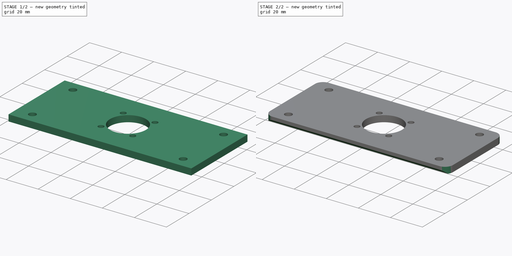
[diagram: build sequence overview — one tinted view per stage of 2, left to right]
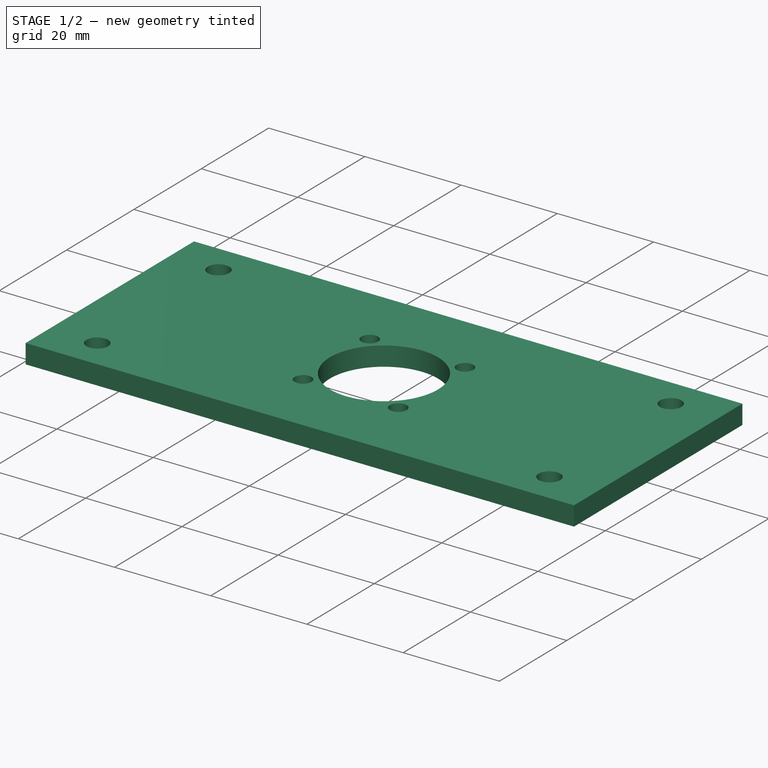
[diagram: stage 1 of 2 — iso view after this stage's code; geometry added in this stage tinted green]
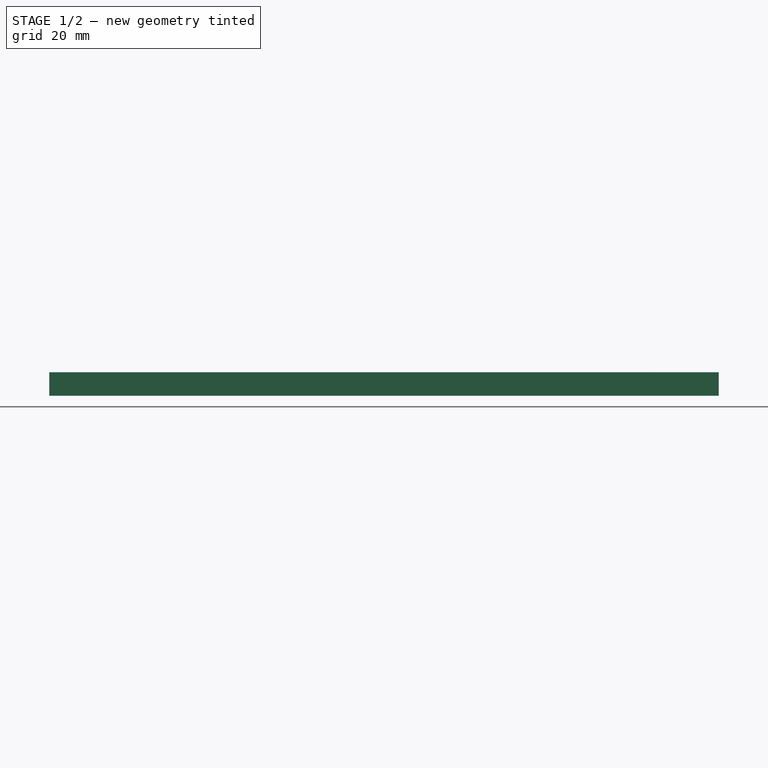
[diagram: stage 1 of 2 — front view after this stage's code; geometry added in this stage tinted green]
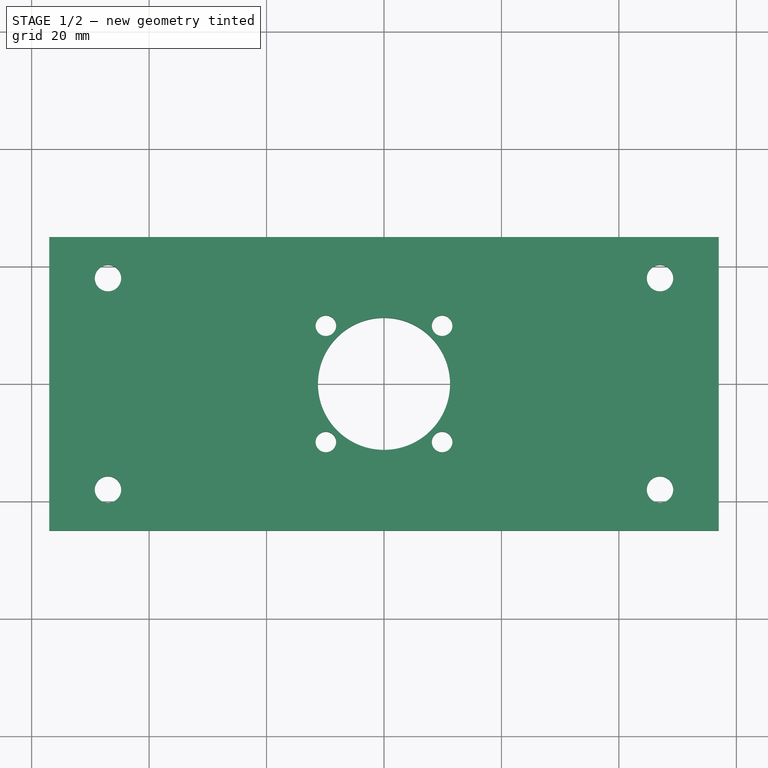
[diagram: stage 1 of 2 — top view after this stage's code; geometry added in this stage tinted green]
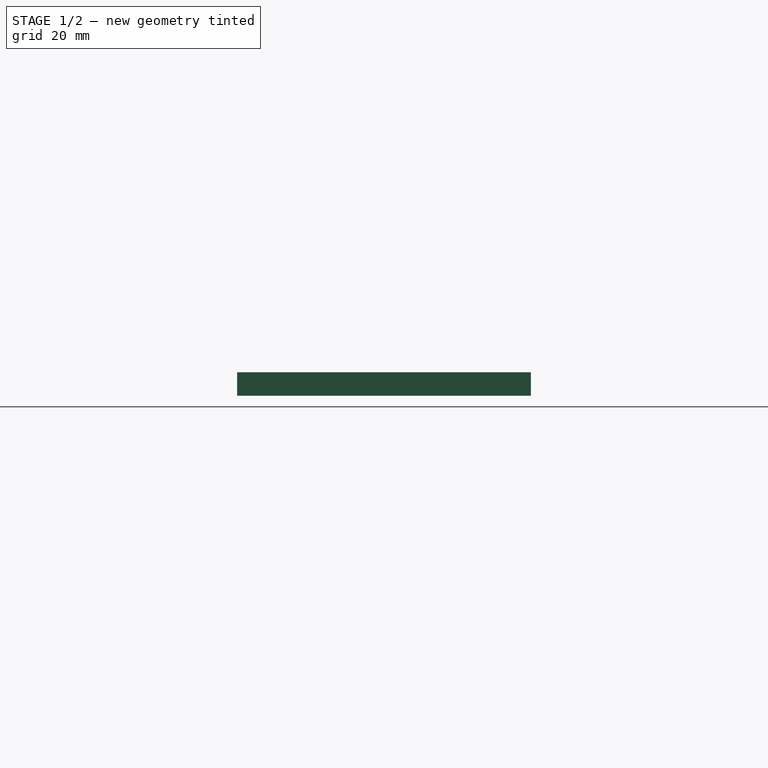
[diagram: stage 1 of 2 — right view after this stage's code; geometry added in this stage tinted green]
FCSTD DOCUMENT  (FreeCAD 0.16R6707 (Git))
Label: spindle motor mount 2
License: All rights reserved
LicenseURL: http://en.wikipedia.org/wiki/All_rights_reserved
objects: Sketcher::SketchObject×2, PartDesign::Pad×1, PartDesign::Pocket×1, PartDesign::Chamfer×1, PartDesign::Fillet×1
note: 8 computed .brp shape members not serialized (recipe doc carries the construction recipe); baked Part::Feature solids carry a one-line shape summary decoded from their .brp

FEATURE [Sketcher::SketchObject] Sketch
  sketch-geometry (4):
    g0: LineSegment StartX=-57 StartY=25 StartZ=0 EndX=57 EndY=25 EndZ=0
    g1: LineSegment StartX=57 StartY=25 StartZ=0 EndX=57 EndY=-25 EndZ=0
    g2: LineSegment StartX=57 StartY=-25 StartZ=0 EndX=-57 EndY=-25 EndZ=0
    g3: LineSegment StartX=-57 StartY=-25 StartZ=0 EndX=-57 EndY=25 EndZ=0
  constraints (12):
    c: Coincident(g0,g1)
    c: Coincident(g1,g2)
    c: Coincident(g2,g3)
    c: Coincident(g3,g0)
    c: Horizontal(g0)
    c: Horizontal(g2)
    c: Vertical(g1)
    c: Vertical(g3)
    c: Symmetric(g0,g0,g-2)
    c: Symmetric(g0,g2,g-1)
    c: DistanceX(g0,g0) = 114
    c: DistanceY(g3,g3) = 50
FEATURE [PartDesign::Pad] Pad
  Length = 4
  Length2 = 100
  Sketch = -> Sketch
  Type = 0
FEATURE [Sketcher::SketchObject] Sketch001
  Placement = pos=(0,0,4) rot=(0,0,1;0rad)
  Support = -> Pad [Face6]
  sketch-geometry (17):
    g0: Circle CenterX=0 CenterY=0 CenterZ=0 NormalX=0 NormalY=0 NormalZ=1 Radius=11.25
    g1: LineSegment [constr] StartX=-47 StartY=18 StartZ=0 EndX=47 EndY=18 EndZ=0
    g2: LineSegment [constr] StartX=47 StartY=18 StartZ=0 EndX=47 EndY=-18 EndZ=0
    g3: LineSegment [constr] StartX=47 StartY=-18 StartZ=0 EndX=-47 EndY=-18 EndZ=0
    g4: LineSegment [constr] StartX=-47 StartY=-18 StartZ=0 EndX=-47 EndY=18 EndZ=0
    g5: Circle CenterX=-47 CenterY=18 CenterZ=0 NormalX=0 NormalY=0 NormalZ=1 Radius=2.25
    g6: Circle CenterX=-47 CenterY=-18 CenterZ=0 NormalX=0 NormalY=0 NormalZ=1 Radius=2.25
    g7: Circle CenterX=47 CenterY=18 CenterZ=0 NormalX=0 NormalY=0 NormalZ=1 Radius=2.25
    g8: Circle CenterX=47 CenterY=-18 CenterZ=0 NormalX=0 NormalY=0 NormalZ=1 Radius=2.25
    g9: LineSegment [constr] StartX=-9.89949 StartY=9.89949 StartZ=0 EndX=9.89949 EndY=9.89949 EndZ=0
    g10: LineSegment [constr] StartX=9.89949 StartY=9.89949 StartZ=0 EndX=9.89949 EndY=-9.89949 EndZ=0
    g11: LineSegment [constr] StartX=9.89949 StartY=-9.89949 StartZ=0 EndX=-9.89949 EndY=-9.89949 EndZ=0
    g12: LineSegment [constr] StartX=-9.89949 StartY=-9.89949 StartZ=0 EndX=-9.89949 EndY=9.89949 EndZ=0
    g13: Circle CenterX=-9.89949 CenterY=9.89949 CenterZ=0 NormalX=0 NormalY=0 NormalZ=1 Radius=1.75
    g14: Circle CenterX=9.89949 CenterY=9.89949 CenterZ=0 NormalX=0 NormalY=0 NormalZ=1 Radius=1.75
    g15: Circle CenterX=9.89949 CenterY=-9.89949 CenterZ=0 NormalX=0 NormalY=0 NormalZ=1 Radius=1.75
    g16: Circle CenterX=-9.89949 CenterY=-9.89949 CenterZ=0 NormalX=0 NormalY=0 NormalZ=1 Radius=1.75
  constraints (42):
    c: Coincident(g0,g-1)
    c: Radius(g0) = 11.25
    c: Coincident(g1,g2)
    c: Coincident(g2,g3)
    c: Coincident(g3,g4)
    c: Coincident(g4,g1)
    c: Horizontal(g1)
    c: Horizontal(g3)
    c: Vertical(g2)
    c: Vertical(g4)
    c: Symmetric(g1,g3,g-1)
    c: Symmetric(g1,g1,g-2)
    c: DistanceX(g1,g1) = 94
    c: DistanceY(g4,g4) = 36
    c: Coincident(g5,g1)
    c: Coincident(g6,g3)
    c: Coincident(g7,g1)
    c: Coincident(g8,g2)
    c: Equal(g5,g6)
    c: Equal(g6,g7)
    c: Equal(g7,g8)
    c: Radius(g5) = 2.25
    c: Coincident(g9,g10)
    c: Coincident(g10,g11)
    c: Coincident(g11,g12)
    c: Coincident(g12,g9)
    c: Horizontal(g9)
    c: Horizontal(g11)
    c: Vertical(g10)
    c: Vertical(g12)
    c: Symmetric(g9,g11,g-1)
    c: Symmetric(g9,g9,g-2)
    c: Equal(g9,g12)
    c: Distance(g11,g9) = 28
    c: Coincident(g13,g9)
    c: Coincident(g14,g9)
    c: Coincident(g15,g10)
    c: Coincident(g11,g16)
    c: Radius(g13) = 1.75
    c: Equal(g13,g16)
    c: Equal(g13,g15)
    c: Equal(g13,g14)
FEATURE [PartDesign::Pocket] Pocket
  Length = 5
  Sketch = -> Sketch001
  Type = 1
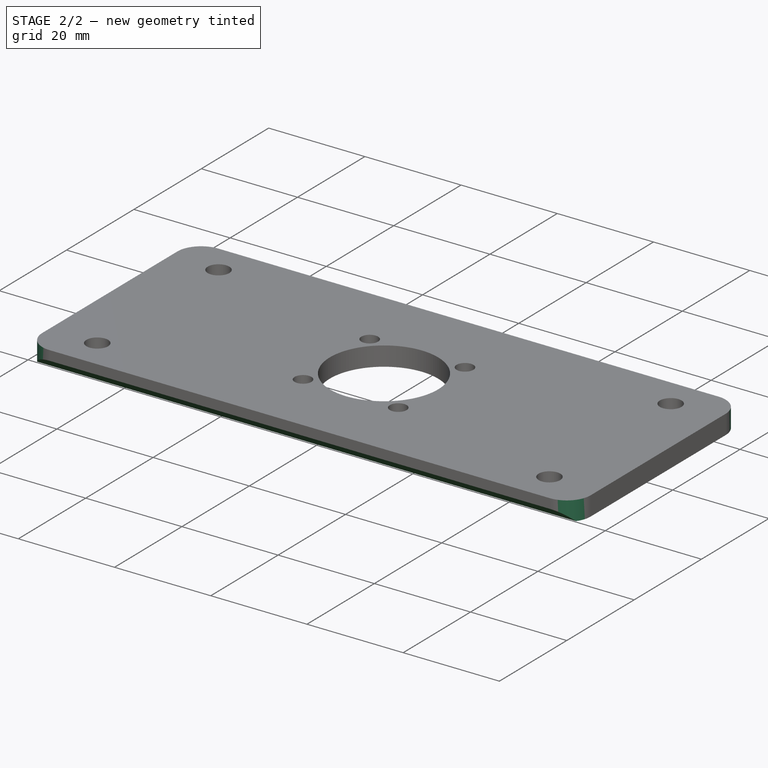
[diagram: stage 2 of 2 — iso view after this stage's code; geometry added in this stage tinted green]
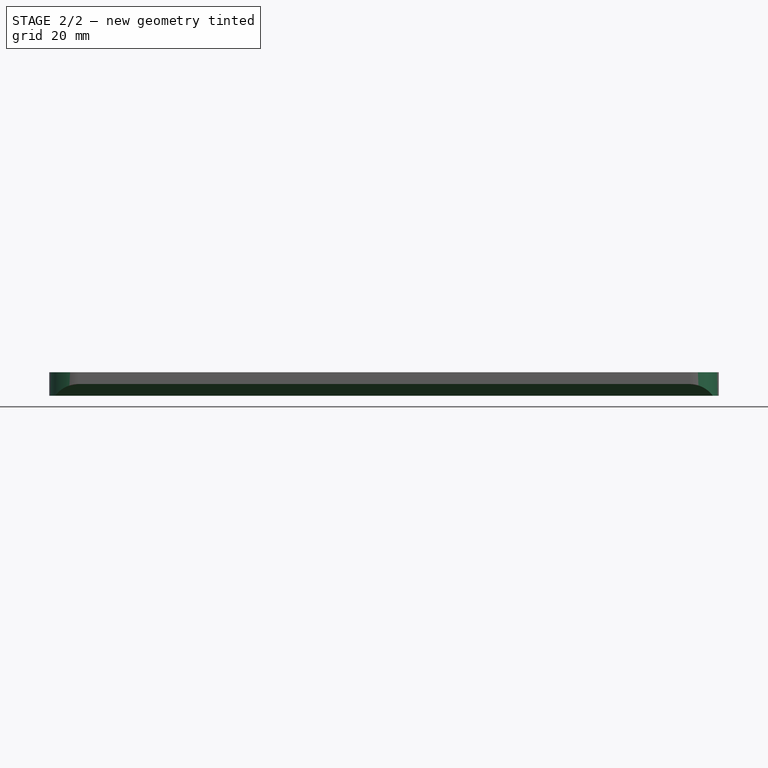
[diagram: stage 2 of 2 — front view after this stage's code; geometry added in this stage tinted green]
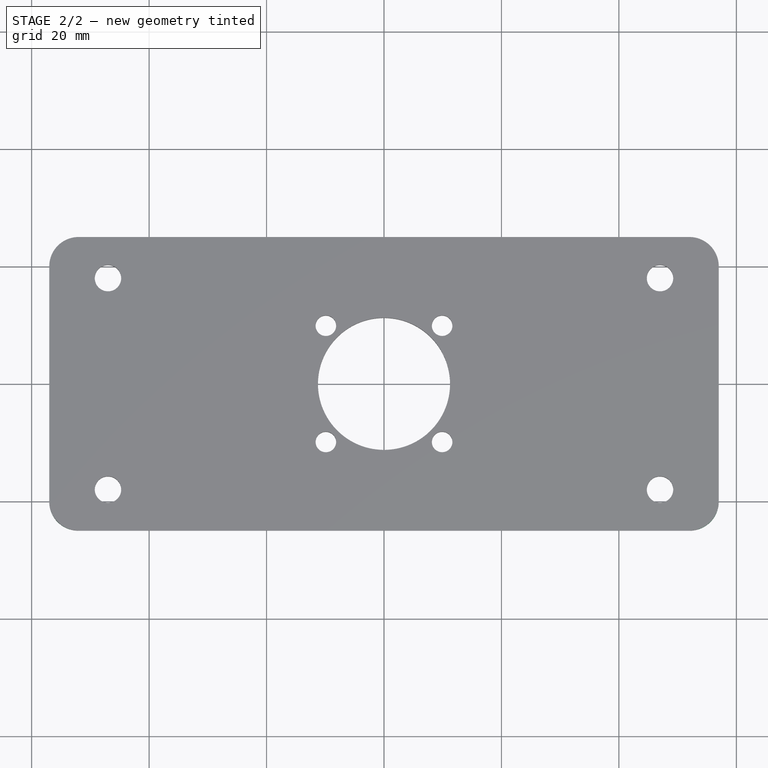
[diagram: stage 2 of 2 — top view after this stage's code; geometry added in this stage tinted green]
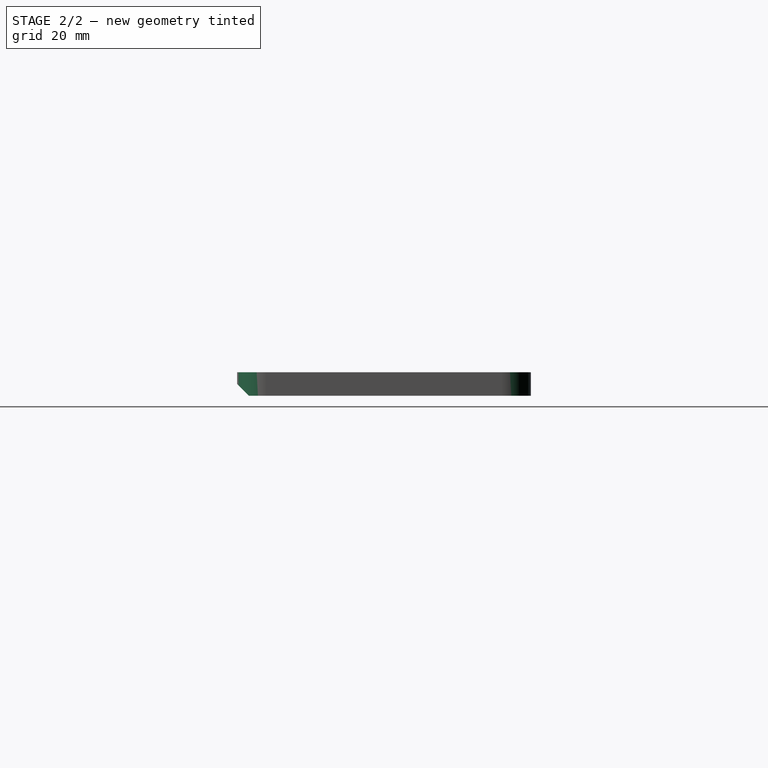
[diagram: stage 2 of 2 — right view after this stage's code; geometry added in this stage tinted green]
FEATURE [PartDesign::Chamfer] Chamfer
  Base = -> Pocket [Edge11]
  Size = 2
FEATURE [PartDesign::Fillet] Fillet
  Base = -> Chamfer [Edge1,Edge5,Edge6,Edge33]
  Radius = 5
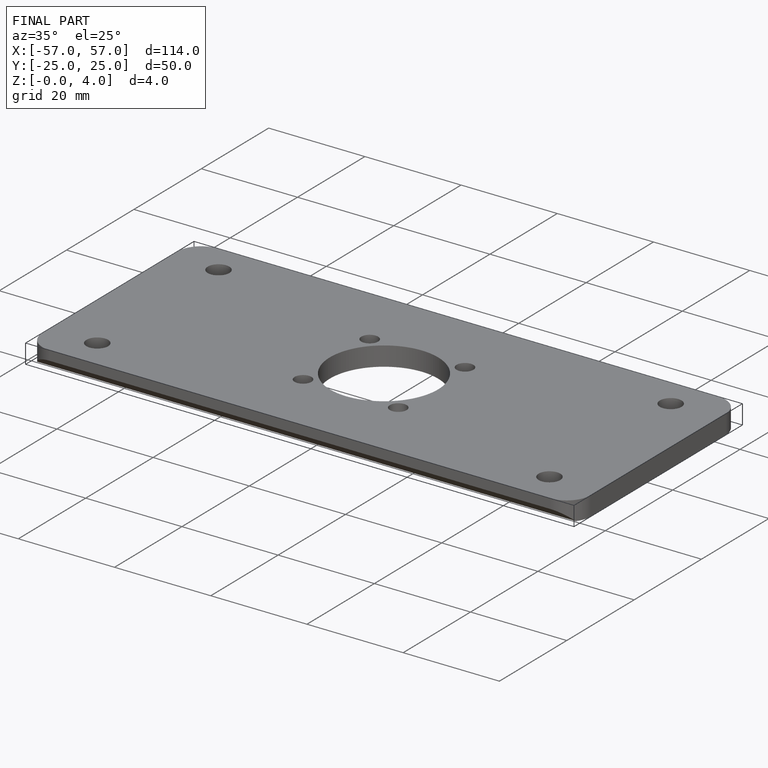
[diagram: finished part — iso view with bounding-box wireframe]
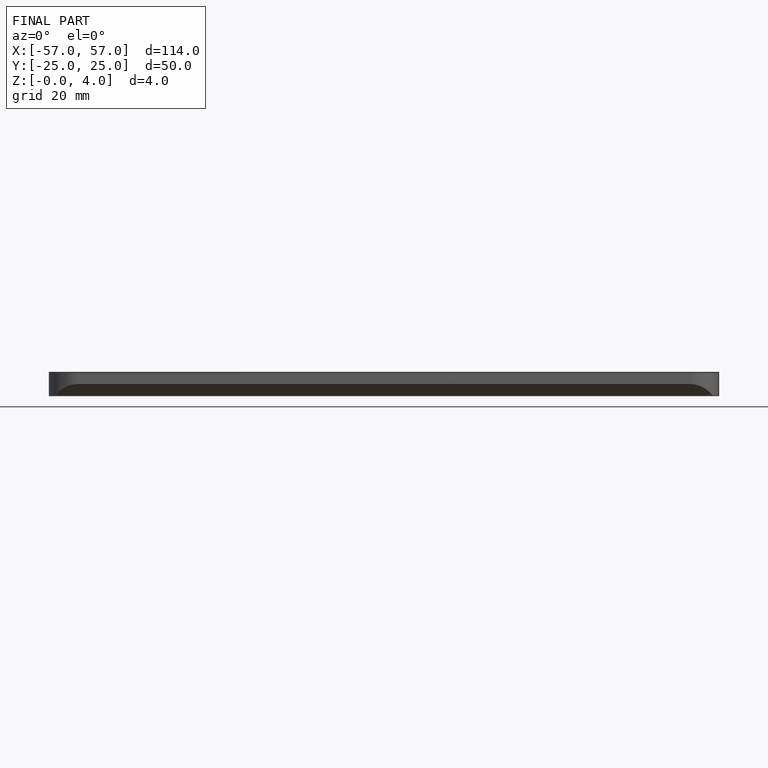
[diagram: finished part — front view with bounding-box wireframe]
